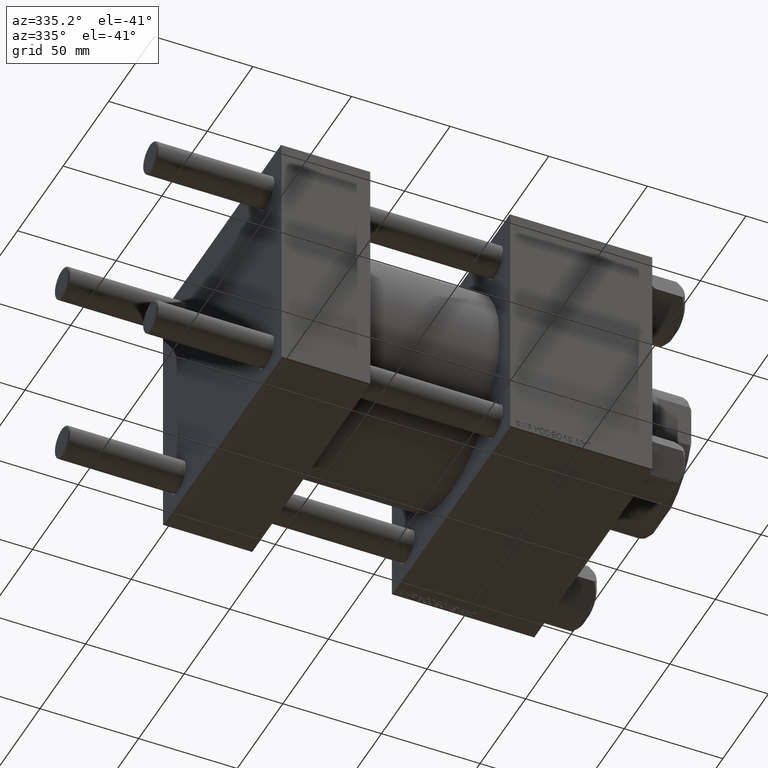
[diagram: clean part render]
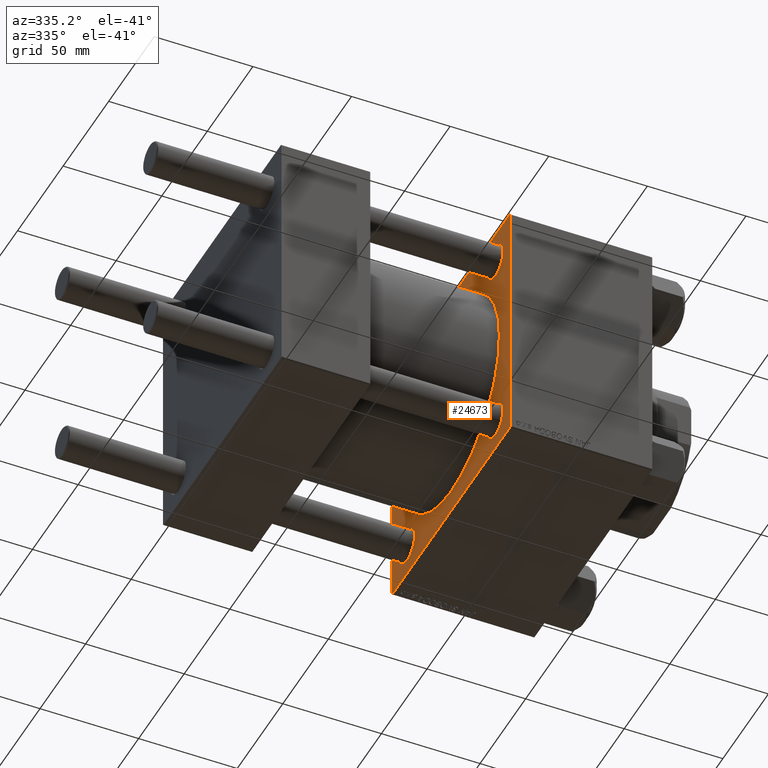
[diagram: same view with one face highlighted and labeled with its STEP entity id]
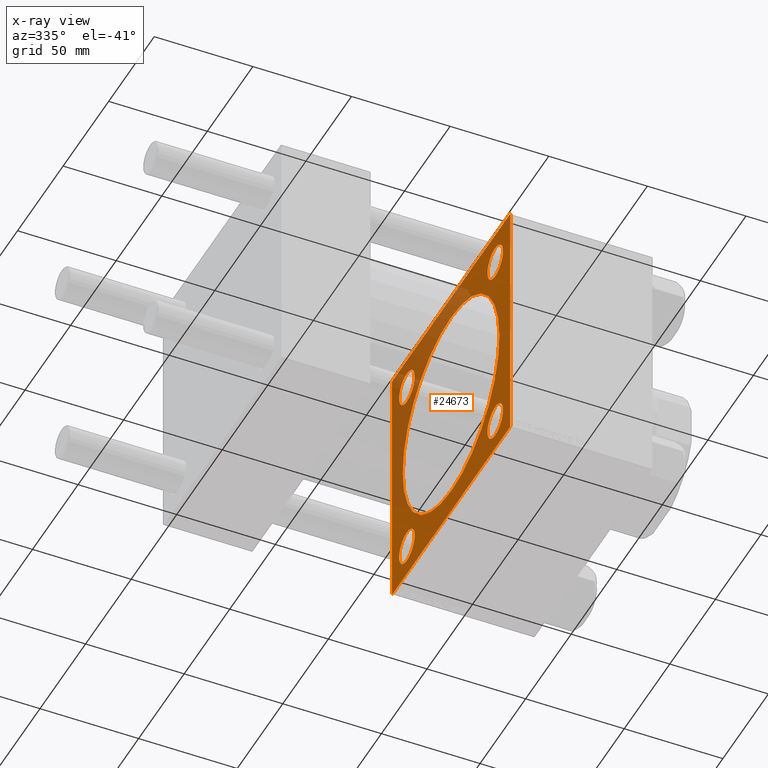
[diagram: x-ray of the same camera — body ghosted, the highlighted face saturated]
A machine part, auxiliary view. The second image highlights one B-rep face of the part: STEP entity #24673.
The next image is the same camera in x-ray: the body ghosted, the highlighted face saturated — about 31% of this face is hidden behind the body in this view.
In plain terms, the highlighted planar face has unit normal (-1, 0, 0).
Its self-contained STEP definition (entity closure, byte-faithful):
#160 = AXIS2_PLACEMENT_3D ( 'NONE', #43782, #21333, #44279 ) ;
#821 = ORIENTED_EDGE ( 'NONE', *, *, #46168, .T. ) ;
#1666 = CARTESIAN_POINT ( 'NONE',  ( 115.9999999999999858, -48.44999999999999574, -48.45000000000003126 ) ) ;
#1734 = ORIENTED_EDGE ( 'NONE', *, *, #19537, .T. ) ;
#1857 = EDGE_LOOP ( 'NONE', ( #24509, #1734 ) ) ;
#2308 = AXIS2_PLACEMENT_3D ( 'NONE', #20651, #20898, #32873 ) ;
#2548 = VERTEX_POINT ( 'NONE', #25234 ) ;
#2612 = DIRECTION ( 'NONE',  ( 1.000000000000000000, -0.000000000000000000, 0.000000000000000000 ) ) ;
#3227 = DIRECTION ( 'NONE',  ( 1.000000000000000000, -0.000000000000000000, 0.000000000000000000 ) ) ;
#3828 = VERTEX_POINT ( 'NONE', #15221 ) ;
#4146 = VERTEX_POINT ( 'NONE', #14158 ) ;
#4930 = EDGE_CURVE ( 'NONE', #28330, #13491, #40530, .T. ) ;
#4986 = FACE_BOUND ( 'NONE', #15819, .T. ) ;
#5464 = DIRECTION ( 'NONE',  ( 0.000000000000000000, 0.000000000000000000, 1.000000000000000000 ) ) ;
#5739 = FACE_BOUND ( 'NONE', #14214, .T. ) ;
#5742 = LINE ( 'NONE', #36897, #27036 ) ;
#5829 = VECTOR ( 'NONE', #18498, 1000.000000000000000 ) ;
#6455 = CARTESIAN_POINT ( 'NONE',  ( 115.9999999999999858, -48.44999999999999574, 48.45000000000003126 ) ) ;
#6915 = CARTESIAN_POINT ( 'NONE',  ( 115.9999999999999858, -64.50000000000008527, 65.00000000000000000 ) ) ;
#6919 = CARTESIAN_POINT ( 'NONE',  ( 115.9999999999999858, -64.50000000000002842, -65.00000000000001421 ) ) ;
#7547 = AXIS2_PLACEMENT_3D ( 'NONE', #24116, #39668, #19040 ) ;
#7654 = EDGE_LOOP ( 'NONE', ( #30091, #33376 ) ) ;
#8499 = DIRECTION ( 'NONE',  ( 0.000000000000000000, 0.7071067811865279218, -0.7071067811865671127 ) ) ;
#9382 = LINE ( 'NONE', #40510, #37287 ) ;
#9696 = ORIENTED_EDGE ( 'NONE', *, *, #4930, .T. ) ;
#9994 = CIRCLE ( 'NONE', #7547, 53.00000000000000711 ) ;
#10622 = VERTEX_POINT ( 'NONE', #36068 ) ;
#10959 = VERTEX_POINT ( 'NONE', #30403 ) ;
#11577 = LINE ( 'NONE', #19004, #5829 ) ;
#12087 = DIRECTION ( 'NONE',  ( 1.000000000000000000, -0.000000000000000000, 0.000000000000000000 ) ) ;
#12122 = EDGE_CURVE ( 'NONE', #13491, #28330, #39798, .T. ) ;
#12190 = CARTESIAN_POINT ( 'NONE',  ( 115.9999999999999858, 0.000000000000000000, 0.000000000000000000 ) ) ;
#12809 = AXIS2_PLACEMENT_3D ( 'NONE', #1666, #17249, #40453 ) ;
#13051 = VERTEX_POINT ( 'NONE', #18471 ) ;
#13122 = CARTESIAN_POINT ( 'NONE',  ( 115.9999999999999858, -48.44999999999999574, 48.45000000000003126 ) ) ;
#13306 = VECTOR ( 'NONE', #33457, 1000.000000000000000 ) ;
#13491 = VERTEX_POINT ( 'NONE', #17019 ) ;
#13669 = DIRECTION ( 'NONE',  ( -0.000000000000000000, 0.7071067811865376918, 0.7071067811865574537 ) ) ;
#14158 = CARTESIAN_POINT ( 'NONE',  ( 115.9999999999999858, 6.490628035480973107E-15, -53.00000000000000711 ) ) ;
#14214 = EDGE_LOOP ( 'NONE', ( #29073, #9696 ) ) ;
#14854 = CARTESIAN_POINT ( 'NONE',  ( 115.9999999999999858, -64.99999999999998579, 64.50000000000008527 ) ) ;
#15134 = DIRECTION ( 'NONE',  ( 0.000000000000000000, -1.000000000000000000, -2.135044278125300850E-16 ) ) ;
#15221 = CARTESIAN_POINT ( 'NONE',  ( 115.9999999999999858, 48.45000000000000995, -56.94999999999996732 ) ) ;
#15819 = EDGE_LOOP ( 'NONE', ( #20931, #42078 ) ) ;
#15912 = LINE ( 'NONE', #38624, #31378 ) ;
#16316 = DIRECTION ( 'NONE',  ( 0.000000000000000000, -0.7071067811865279218, 0.7071067811865672237 ) ) ;
#16757 = ORIENTED_EDGE ( 'NONE', *, *, #39991, .T. ) ;
#17019 = CARTESIAN_POINT ( 'NONE',  ( 115.9999999999999858, -48.44999999999999574, -39.95000000000007390 ) ) ;
#17221 = DIRECTION ( 'NONE',  ( 1.000000000000000000, -0.000000000000000000, 0.000000000000000000 ) ) ;
#17249 = DIRECTION ( 'NONE',  ( 1.000000000000000000, -0.000000000000000000, 0.000000000000000000 ) ) ;
#18471 = CARTESIAN_POINT ( 'NONE',  ( 115.9999999999999858, -48.44999999999999574, 56.94999999999998153 ) ) ;
#18498 = DIRECTION ( 'NONE',  ( -0.000000000000000000, -0.7071067811865671127, -0.7071067811865279218 ) ) ;
#19004 = CARTESIAN_POINT ( 'NONE',  ( 115.9999999999999858, 64.74999999999822364, -64.75000000000180478 ) ) ;
#19040 = DIRECTION ( 'NONE',  ( 0.000000000000000000, 0.000000000000000000, -1.000000000000000000 ) ) ;
#19120 = AXIS2_PLACEMENT_3D ( 'NONE', #28140, #12087, #24331 ) ;
#19537 = EDGE_CURVE ( 'NONE', #4146, #10959, #23790, .T. ) ;
#19645 = LINE ( 'NONE', #39022, #27916 ) ;
#20547 = CARTESIAN_POINT ( 'NONE',  ( 115.9999999999999858, 48.45000000000000995, -39.95000000000005969 ) ) ;
#20610 = VECTOR ( 'NONE', #35666, 1000.000000000000000 ) ;
#20651 = CARTESIAN_POINT ( 'NONE',  ( 115.9999999999999858, -48.44999999999999574, -48.45000000000003126 ) ) ;
#20898 = DIRECTION ( 'NONE',  ( 1.000000000000000000, -0.000000000000000000, 0.000000000000000000 ) ) ;
#20902 = CIRCLE ( 'NONE', #44517, 8.499999999999952038 ) ;
#20931 = ORIENTED_EDGE ( 'NONE', *, *, #38963, .T. ) ;
#21333 = DIRECTION ( 'NONE',  ( -1.000000000000000000, 0.000000000000000000, -0.000000000000000000 ) ) ;
#21349 = CIRCLE ( 'NONE', #49836, 8.499999999999952038 ) ;
#21506 = EDGE_CURVE ( 'NONE', #47401, #23860, #26598, .T. ) ;
#21661 = AXIS2_PLACEMENT_3D ( 'NONE', #23383, #42756, #30012 ) ;
#21953 = ORIENTED_EDGE ( 'NONE', *, *, #25240, .T. ) ;
#21960 = EDGE_CURVE ( 'NONE', #10959, #4146, #9994, .T. ) ;
#22226 = ORIENTED_EDGE ( 'NONE', *, *, #33377, .T. ) ;
#22984 = AXIS2_PLACEMENT_3D ( 'NONE', #12190, #31071, #27491 ) ;
#23383 = CARTESIAN_POINT ( 'NONE',  ( 115.9999999999999858, 48.45000000000000995, -48.45000000000001705 ) ) ;
#23450 = EDGE_CURVE ( 'NONE', #48245, #47401, #11577, .T. ) ;
#23790 = CIRCLE ( 'NONE', #22984, 53.00000000000000711 ) ;
#23823 = AXIS2_PLACEMENT_3D ( 'NONE', #6455, #2612, #37593 ) ;
#23860 = VERTEX_POINT ( 'NONE', #6919 ) ;
#24116 = CARTESIAN_POINT ( 'NONE',  ( 115.9999999999999858, 0.000000000000000000, 0.000000000000000000 ) ) ;
#24271 = EDGE_LOOP ( 'NONE', ( #25006, #21953, #27749, #39313, #40969, #16757, #42350, #40322 ) ) ;
#24331 = DIRECTION ( 'NONE',  ( 0.000000000000000000, 0.000000000000000000, 1.000000000000000000 ) ) ;
#24509 = ORIENTED_EDGE ( 'NONE', *, *, #21960, .T. ) ;
#24673 = ADVANCED_FACE ( 'NONE', ( #48094, #28709, #4986, #5739, #36639, #32053 ), #40447, .T. ) ;
#25006 = ORIENTED_EDGE ( 'NONE', *, *, #21506, .T. ) ;
#25198 = DIRECTION ( 'NONE',  ( 0.000000000000000000, 0.000000000000000000, -1.000000000000000000 ) ) ;
#25234 = CARTESIAN_POINT ( 'NONE',  ( 115.9999999999999858, -48.44999999999999574, 39.95000000000007390 ) ) ;
#25240 = EDGE_CURVE ( 'NONE', #23860, #44034, #19645, .T. ) ;
#25293 = CARTESIAN_POINT ( 'NONE',  ( 115.9999999999999858, 65.00000000000002842, 65.00000000000001421 ) ) ;
#25950 = CARTESIAN_POINT ( 'NONE',  ( 115.9999999999999858, 48.45000000000000995, 48.45000000000001705 ) ) ;
#26230 = VECTOR ( 'NONE', #15134, 1000.000000000000000 ) ;
#26598 = LINE ( 'NONE', #34526, #26230 ) ;
#27036 = VECTOR ( 'NONE', #13669, 999.9999999999998863 ) ;
#27081 = EDGE_CURVE ( 'NONE', #37427, #46654, #39731, .T. ) ;
#27491 = DIRECTION ( 'NONE',  ( 0.000000000000000000, 0.000000000000000000, -1.000000000000000000 ) ) ;
#27749 = ORIENTED_EDGE ( 'NONE', *, *, #50309, .F. ) ;
#27866 = EDGE_CURVE ( 'NONE', #28308, #48245, #32956, .T. ) ;
#27916 = VECTOR ( 'NONE', #16316, 1000.000000000000000 ) ;
#28140 = CARTESIAN_POINT ( 'NONE',  ( 115.9999999999999858, 48.45000000000000995, -48.45000000000001705 ) ) ;
#28308 = VERTEX_POINT ( 'NONE', #31519 ) ;
#28330 = VERTEX_POINT ( 'NONE', #37114 ) ;
#28709 = FACE_BOUND ( 'NONE', #7654, .T. ) ;
#28759 = VERTEX_POINT ( 'NONE', #49516 ) ;
#29073 = ORIENTED_EDGE ( 'NONE', *, *, #12122, .T. ) ;
#29473 = EDGE_CURVE ( 'NONE', #28759, #10622, #21349, .T. ) ;
#29749 = CARTESIAN_POINT ( 'NONE',  ( 115.9999999999999858, 64.50000000000005684, 65.00000000000001421 ) ) ;
#30012 = DIRECTION ( 'NONE',  ( 0.000000000000000000, 0.000000000000000000, 1.000000000000000000 ) ) ;
#30033 = DIRECTION ( 'NONE',  ( 0.000000000000000000, 0.000000000000000000, 1.000000000000000000 ) ) ;
#30091 = ORIENTED_EDGE ( 'NONE', *, *, #29473, .T. ) ;
#30403 = CARTESIAN_POINT ( 'NONE',  ( 115.9999999999999858, 0.000000000000000000, 53.00000000000000711 ) ) ;
#30905 = DIRECTION ( 'NONE',  ( 1.000000000000000000, -0.000000000000000000, 0.000000000000000000 ) ) ;
#31071 = DIRECTION ( 'NONE',  ( 1.000000000000000000, 0.000000000000000000, 0.000000000000000000 ) ) ;
#31378 = VECTOR ( 'NONE', #8499, 1000.000000000000000 ) ;
#31519 = CARTESIAN_POINT ( 'NONE',  ( 115.9999999999999858, 65.00000000000002842, 64.50000000000001421 ) ) ;
#31804 = CARTESIAN_POINT ( 'NONE',  ( 115.9999999999999858, 65.00000000000002842, -64.50000000000001421 ) ) ;
#31885 = EDGE_CURVE ( 'NONE', #10622, #28759, #49032, .T. ) ;
#32053 = FACE_OUTER_BOUND ( 'NONE', #24271, .T. ) ;
#32069 = EDGE_CURVE ( 'NONE', #39172, #46654, #5742, .T. ) ;
#32329 = CARTESIAN_POINT ( 'NONE',  ( 115.9999999999999858, 65.00000000000002842, 65.00000000000001421 ) ) ;
#32873 = DIRECTION ( 'NONE',  ( 0.000000000000000000, 0.000000000000000000, 1.000000000000000000 ) ) ;
#32956 = LINE ( 'NONE', #25293, #13306 ) ;
#33376 = ORIENTED_EDGE ( 'NONE', *, *, #31885, .T. ) ;
#33377 = EDGE_CURVE ( 'NONE', #2548, #13051, #45800, .T. ) ;
#33457 = DIRECTION ( 'NONE',  ( 0.000000000000000000, 0.000000000000000000, -1.000000000000000000 ) ) ;
#34526 = CARTESIAN_POINT ( 'NONE',  ( 115.9999999999999858, 65.00000000000002842, -64.99999999999998579 ) ) ;
#34741 = DIRECTION ( 'NONE',  ( 0.000000000000000000, 0.000000000000000000, 1.000000000000000000 ) ) ;
#35666 = DIRECTION ( 'NONE',  ( 0.000000000000000000, -1.000000000000000000, -1.067522139062650425E-16 ) ) ;
#35673 = VERTEX_POINT ( 'NONE', #20547 ) ;
#35766 = CARTESIAN_POINT ( 'NONE',  ( 115.9999999999999858, -64.99999999999998579, -64.50000000000002842 ) ) ;
#36029 = AXIS2_PLACEMENT_3D ( 'NONE', #25950, #3227, #30033 ) ;
#36068 = CARTESIAN_POINT ( 'NONE',  ( 115.9999999999999858, 48.45000000000000995, 39.95000000000005969 ) ) ;
#36639 = FACE_BOUND ( 'NONE', #1857, .T. ) ;
#36897 = CARTESIAN_POINT ( 'NONE',  ( 115.9999999999999858, -64.75000000000093792, 64.74999999999914735 ) ) ;
#37114 = CARTESIAN_POINT ( 'NONE',  ( 115.9999999999999858, -48.44999999999999574, -56.94999999999998153 ) ) ;
#37287 = VECTOR ( 'NONE', #25198, 1000.000000000000000 ) ;
#37427 = VERTEX_POINT ( 'NONE', #29749 ) ;
#37593 = DIRECTION ( 'NONE',  ( 0.000000000000000000, 0.000000000000000000, 1.000000000000000000 ) ) ;
#38624 = CARTESIAN_POINT ( 'NONE',  ( 115.9999999999999858, 64.75000000000181899, 64.74999999999822364 ) ) ;
#38662 = CIRCLE ( 'NONE', #19120, 8.499999999999952038 ) ;
#38963 = EDGE_CURVE ( 'NONE', #35673, #3828, #38662, .T. ) ;
#39022 = CARTESIAN_POINT ( 'NONE',  ( 115.9999999999999858, -64.75000000000180478, -64.74999999999820943 ) ) ;
#39172 = VERTEX_POINT ( 'NONE', #14854 ) ;
#39313 = ORIENTED_EDGE ( 'NONE', *, *, #32069, .T. ) ;
#39668 = DIRECTION ( 'NONE',  ( 1.000000000000000000, 0.000000000000000000, 0.000000000000000000 ) ) ;
#39731 = LINE ( 'NONE', #32329, #20610 ) ;
#39798 = CIRCLE ( 'NONE', #2308, 8.499999999999952038 ) ;
#39991 = EDGE_CURVE ( 'NONE', #37427, #28308, #15912, .T. ) ;
#40322 = ORIENTED_EDGE ( 'NONE', *, *, #23450, .T. ) ;
#40447 = PLANE ( 'NONE',  #160 ) ;
#40453 = DIRECTION ( 'NONE',  ( 0.000000000000000000, 0.000000000000000000, 1.000000000000000000 ) ) ;
#40510 = CARTESIAN_POINT ( 'NONE',  ( 115.9999999999999858, -64.99999999999998579, 65.00000000000000000 ) ) ;
#40530 = CIRCLE ( 'NONE', #12809, 8.499999999999952038 ) ;
#40969 = ORIENTED_EDGE ( 'NONE', *, *, #27081, .F. ) ;
#42078 = ORIENTED_EDGE ( 'NONE', *, *, #45455, .T. ) ;
#42350 = ORIENTED_EDGE ( 'NONE', *, *, #27866, .T. ) ;
#42756 = DIRECTION ( 'NONE',  ( 1.000000000000000000, -0.000000000000000000, 0.000000000000000000 ) ) ;
#43782 = CARTESIAN_POINT ( 'NONE',  ( 115.9999999999999858, 0.000000000000000000, 0.000000000000000000 ) ) ;
#44034 = VERTEX_POINT ( 'NONE', #35766 ) ;
#44279 = DIRECTION ( 'NONE',  ( -0.000000000000000000, 0.000000000000000000, 1.000000000000000000 ) ) ;
#44517 = AXIS2_PLACEMENT_3D ( 'NONE', #13122, #17221, #5464 ) ;
#44964 = CARTESIAN_POINT ( 'NONE',  ( 115.9999999999999858, 64.50000000000002842, -64.99999999999998579 ) ) ;
#45072 = EDGE_LOOP ( 'NONE', ( #821, #22226 ) ) ;
#45455 = EDGE_CURVE ( 'NONE', #3828, #35673, #46923, .T. ) ;
#45800 = CIRCLE ( 'NONE', #23823, 8.499999999999952038 ) ;
#46168 = EDGE_CURVE ( 'NONE', #13051, #2548, #20902, .T. ) ;
#46654 = VERTEX_POINT ( 'NONE', #6915 ) ;
#46923 = CIRCLE ( 'NONE', #21661, 8.499999999999952038 ) ;
#47401 = VERTEX_POINT ( 'NONE', #44964 ) ;
#48094 = FACE_BOUND ( 'NONE', #45072, .T. ) ;
#48245 = VERTEX_POINT ( 'NONE', #31804 ) ;
#49032 = CIRCLE ( 'NONE', #36029, 8.499999999999952038 ) ;
#49516 = CARTESIAN_POINT ( 'NONE',  ( 115.9999999999999858, 48.45000000000000995, 56.94999999999996732 ) ) ;
#49836 = AXIS2_PLACEMENT_3D ( 'NONE', #50024, #30905, #34741 ) ;
#50024 = CARTESIAN_POINT ( 'NONE',  ( 115.9999999999999858, 48.45000000000000995, 48.45000000000001705 ) ) ;
#50309 = EDGE_CURVE ( 'NONE', #39172, #44034, #9382, .T. ) ;